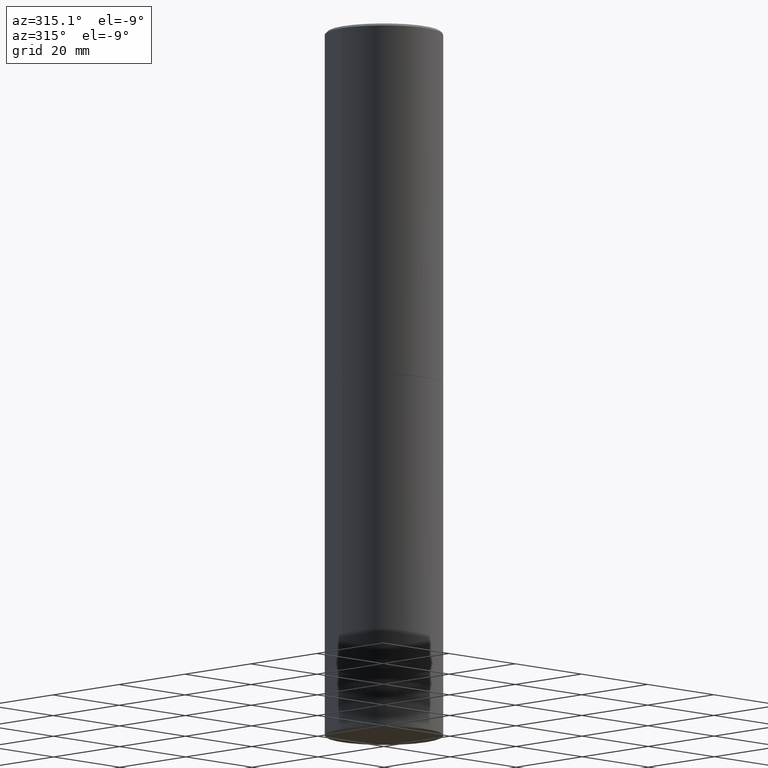
[diagram: clean part render]
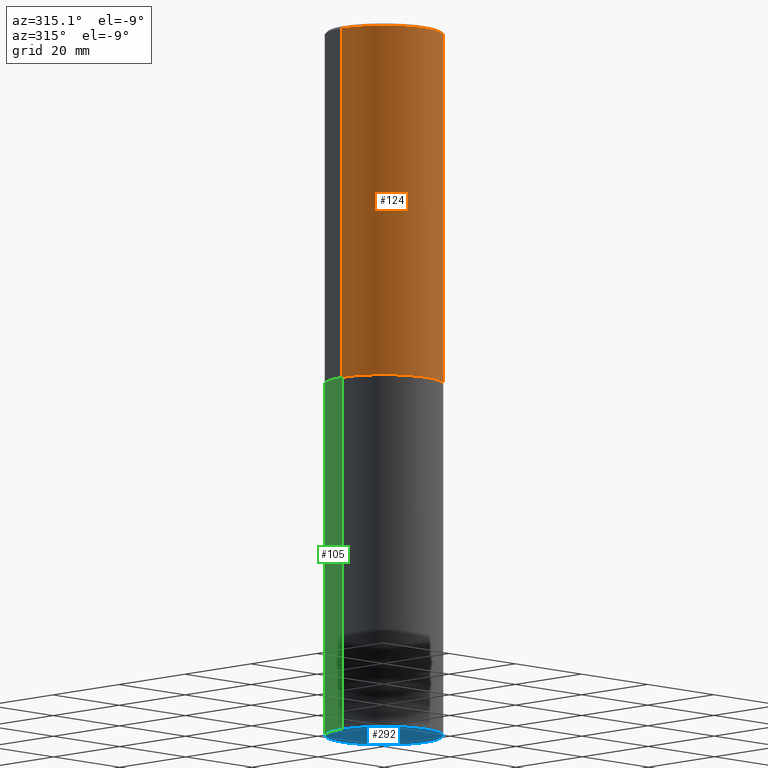
[diagram: same view with three faces highlighted in distinct colors, each labeled with its STEP entity id]
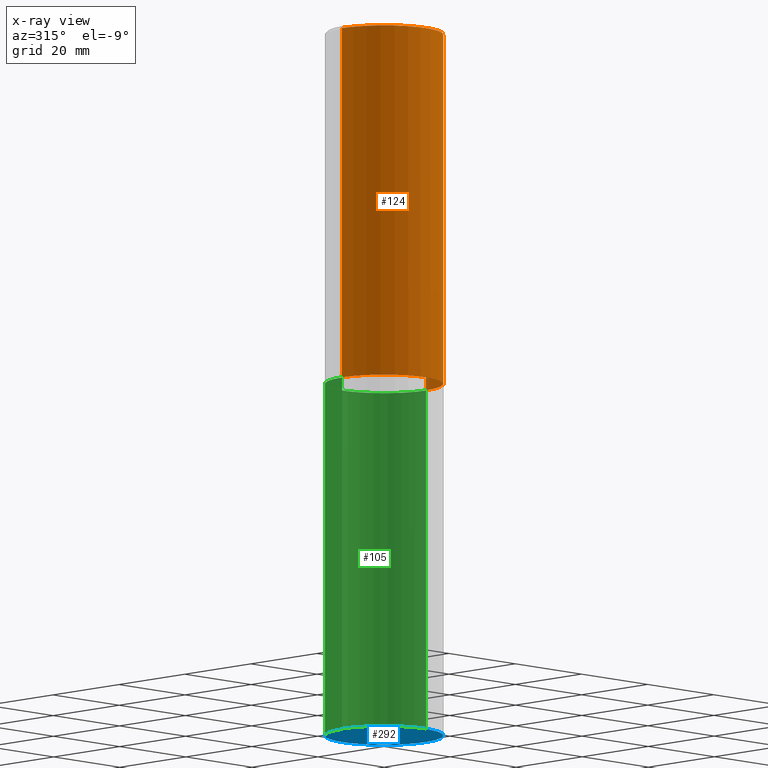
[diagram: x-ray of the same camera — body ghosted, the three highlighted faces saturated]
A machine part, auxiliary view with three faces highlighted in distinct colors.
The next image is the same camera in x-ray (body ghosted, the three faces saturated) — at least one of them is partly hidden behind the body in this view.
Their STEP definitions:

[orange] entity #124 — the highlighted cylindrical surface (partial cylindrical patch) has radius 12.7 mm, axis along (-0, 0, 1).
#7 = VECTOR ( 'NONE', #289, 39.37007874015748143 ) ;
#9 = ORIENTED_EDGE ( 'NONE', *, *, #233, .F. ) ;
#15 = DIRECTION ( 'NONE',  ( 1.000000000000000000, -6.982962677686266711E-15, 0.000000000000000000 ) ) ;
#16 = CARTESIAN_POINT ( 'NONE',  ( -0.5000000000000000000, -1.717677402183225026E-15, -2.999000000000000554 ) ) ;
#23 = CIRCLE ( 'NONE', #149, 0.4999999999999996114 ) ;
#25 = CARTESIAN_POINT ( 'NONE',  ( -0.4999999999999997780, 3.552713678800499352E-15, -2.459467545127452050E-29 ) ) ;
#45 = CARTESIAN_POINT ( 'NONE',  ( -0.4999999999999996114, 3.421651712066267296E-15, -0.02000000000000010797 ) ) ;
#51 = DIRECTION ( 'NONE',  ( -2.445468806185136877E-29, 3.491481338843145188E-15, 1.000000000000000000 ) ) ;
#56 = ORIENTED_EDGE ( 'NONE', *, *, #280, .T. ) ;
#71 = CARTESIAN_POINT ( 'NONE',  ( 4.890937612370299433E-31, -6.982962677686328587E-17, -0.02000000000000010797 ) ) ;
#79 = VECTOR ( 'NONE', #51, 39.37007874015748143 ) ;
#86 = AXIS2_PLACEMENT_3D ( 'NONE', #286, #168, #223 ) ;
#89 = VERTEX_POINT ( 'NONE', #247 ) ;
#102 = LINE ( 'NONE', #25, #79 ) ;
#104 = LINE ( 'NONE', #339, #7 ) ;
#109 = VERTEX_POINT ( 'NONE', #45 ) ;
#124 = ADVANCED_FACE ( 'NONE', ( #360 ), #159, .T. ) ;
#134 = EDGE_CURVE ( 'NONE', #109, #89, #23, .T. ) ;
#146 = EDGE_LOOP ( 'NONE', ( #9, #170, #56, #270 ) ) ;
#149 = AXIS2_PLACEMENT_3D ( 'NONE', #71, #217, #15 ) ;
#156 = DIRECTION ( 'NONE',  ( -2.445468806185136597E-29, 3.491481338843145583E-15, 1.000000000000000000 ) ) ;
#159 = CYLINDRICAL_SURFACE ( 'NONE', #230, 0.4999999999999997780 ) ;
#168 = DIRECTION ( 'NONE',  ( -2.445468806185136597E-29, 3.491481338843145583E-15, 1.000000000000000000 ) ) ;
#170 = ORIENTED_EDGE ( 'NONE', *, *, #268, .T. ) ;
#186 = CARTESIAN_POINT ( 'NONE',  ( 0.000000000000000000, 0.000000000000000000, 0.000000000000000000 ) ) ;
#203 = VERTEX_POINT ( 'NONE', #16 ) ;
#212 = DIRECTION ( 'NONE',  ( 1.000000000000000000, -6.982962677686266711E-15, 4.876176775795935793E-29 ) ) ;
#217 = DIRECTION ( 'NONE',  ( -2.445468806185136597E-29, 3.491481338843145583E-15, 1.000000000000000000 ) ) ;
#223 = DIRECTION ( 'NONE',  ( 1.000000000000000000, -6.982962677686266711E-15, 0.000000000000000000 ) ) ;
#230 = AXIS2_PLACEMENT_3D ( 'NONE', #186, #156, #212 ) ;
#233 = EDGE_CURVE ( 'NONE', #203, #109, #102, .T. ) ;
#247 = CARTESIAN_POINT ( 'NONE',  ( 0.4999999999999996114, -3.500078625662626318E-15, -0.02000000000000010797 ) ) ;
#268 = EDGE_CURVE ( 'NONE', #203, #322, #325, .T. ) ;
#270 = ORIENTED_EDGE ( 'NONE', *, *, #134, .F. ) ;
#280 = EDGE_CURVE ( 'NONE', #322, #89, #104, .T. ) ;
#286 = CARTESIAN_POINT ( 'NONE',  ( 7.333960949749226429E-29, -1.047095253519059492E-14, -2.999000000000000554 ) ) ;
#287 = CARTESIAN_POINT ( 'NONE',  ( 0.5000000000000000000, -1.396243387403372828E-14, -2.999000000000000554 ) ) ;
#289 = DIRECTION ( 'NONE',  ( -2.445468806185136877E-29, 3.491481338843145188E-15, 1.000000000000000000 ) ) ;
#322 = VERTEX_POINT ( 'NONE', #287 ) ;
#325 = CIRCLE ( 'NONE', #86, 0.5000000000000000000 ) ;
#339 = CARTESIAN_POINT ( 'NONE',  ( 0.4999999999999997780, -3.491481338843131778E-15, 2.438088387897966775E-29 ) ) ;
#360 = FACE_OUTER_BOUND ( 'NONE', #146, .T. ) ;

[blue] entity #292 — the highlighted planar face has unit normal (0, -0, -1).
#43 = CARTESIAN_POINT ( 'NONE',  ( 1.467281283711081958E-28, -2.094888803305887271E-14, -6.000000000000000888 ) ) ;
#44 = CIRCLE ( 'NONE', #239, 0.5000000000000000000 ) ;
#74 = EDGE_CURVE ( 'NONE', #84, #327, #44, .T. ) ;
#84 = VERTEX_POINT ( 'NONE', #336 ) ;
#128 = DIRECTION ( 'NONE',  ( 1.000000000000000000, -6.982962677686262766E-15, 0.000000000000000000 ) ) ;
#158 = AXIS2_PLACEMENT_3D ( 'NONE', #363, #224, #161 ) ;
#161 = DIRECTION ( 'NONE',  ( -1.000000000000000000, 6.982962677686265922E-15, -4.876176775795935793E-29 ) ) ;
#162 = CIRCLE ( 'NONE', #214, 0.5000000000000000000 ) ;
#166 = DIRECTION ( 'NONE',  ( -2.445468806185136597E-29, 3.491481338843145583E-15, 1.000000000000000000 ) ) ;
#191 = DIRECTION ( 'NONE',  ( 1.000000000000000000, -6.982962677686262766E-15, 0.000000000000000000 ) ) ;
#210 = EDGE_CURVE ( 'NONE', #327, #84, #162, .T. ) ;
#214 = AXIS2_PLACEMENT_3D ( 'NONE', #314, #166, #191 ) ;
#224 = DIRECTION ( 'NONE',  ( 2.438088387897960049E-29, -3.491481338843145188E-15, -1.000000000000000000 ) ) ;
#237 = ORIENTED_EDGE ( 'NONE', *, *, #210, .F. ) ;
#239 = AXIS2_PLACEMENT_3D ( 'NONE', #43, #334, #128 ) ;
#255 = FACE_OUTER_BOUND ( 'NONE', #318, .T. ) ;
#281 = CARTESIAN_POINT ( 'NONE',  ( -0.5000000000000000000, -1.215895234599365439E-14, -6.000000000000000888 ) ) ;
#292 = ADVANCED_FACE ( 'NONE', ( #255 ), #310, .T. ) ;
#298 = ORIENTED_EDGE ( 'NONE', *, *, #74, .F. ) ;
#310 = PLANE ( 'NONE',  #158 ) ;
#314 = CARTESIAN_POINT ( 'NONE',  ( 1.467281283711081958E-28, -2.094888803305887271E-14, -6.000000000000000888 ) ) ;
#318 = EDGE_LOOP ( 'NONE', ( #298, #237 ) ) ;
#327 = VERTEX_POINT ( 'NONE', #281 ) ;
#334 = DIRECTION ( 'NONE',  ( -2.445468806185136597E-29, 3.491481338843145583E-15, 1.000000000000000000 ) ) ;
#336 = CARTESIAN_POINT ( 'NONE',  ( 0.5000000000000000000, -2.444036937190200606E-14, -6.000000000000000888 ) ) ;
#363 = CARTESIAN_POINT ( 'NONE',  ( 3.491481338843279295E-15, 0.4999999999999790168, -6.000000000000002665 ) ) ;

[green] entity #105 — the highlighted cylindrical surface (partial cylindrical patch) has radius 12.7 mm, axis along (-0, 0, 1).
#17 = LINE ( 'NONE', #125, #307 ) ;
#33 = EDGE_LOOP ( 'NONE', ( #111, #59, #315, #178 ) ) ;
#36 = EDGE_CURVE ( 'NONE', #327, #91, #197, .T. ) ;
#39 = EDGE_CURVE ( 'NONE', #84, #179, #17, .T. ) ;
#42 = FACE_OUTER_BOUND ( 'NONE', #33, .T. ) ;
#43 = CARTESIAN_POINT ( 'NONE',  ( 1.467281283711081958E-28, -2.094888803305887271E-14, -6.000000000000000888 ) ) ;
#44 = CIRCLE ( 'NONE', #239, 0.5000000000000000000 ) ;
#49 = DIRECTION ( 'NONE',  ( 1.000000000000000000, -6.982962677686266711E-15, 0.000000000000000000 ) ) ;
#54 = CARTESIAN_POINT ( 'NONE',  ( -0.5000000000000000000, 3.552713678800500929E-15, -2.459467545127452891E-29 ) ) ;
#59 = ORIENTED_EDGE ( 'NONE', *, *, #36, .T. ) ;
#68 = AXIS2_PLACEMENT_3D ( 'NONE', #221, #75, #49 ) ;
#70 = DIRECTION ( 'NONE',  ( -2.445468806185136597E-29, 3.491481338843145583E-15, 1.000000000000000000 ) ) ;
#74 = EDGE_CURVE ( 'NONE', #84, #327, #44, .T. ) ;
#75 = DIRECTION ( 'NONE',  ( -2.445468806185136597E-29, 3.491481338843145583E-15, 1.000000000000000000 ) ) ;
#84 = VERTEX_POINT ( 'NONE', #336 ) ;
#91 = VERTEX_POINT ( 'NONE', #272 ) ;
#99 = VECTOR ( 'NONE', #172, 39.37007874015748143 ) ;
#105 = ADVANCED_FACE ( 'NONE', ( #42 ), #359, .T. ) ;
#111 = ORIENTED_EDGE ( 'NONE', *, *, #74, .T. ) ;
#125 = CARTESIAN_POINT ( 'NONE',  ( 0.5000000000000000000, -3.491481338843133355E-15, 2.438088387897967896E-29 ) ) ;
#128 = DIRECTION ( 'NONE',  ( 1.000000000000000000, -6.982962677686262766E-15, 0.000000000000000000 ) ) ;
#172 = DIRECTION ( 'NONE',  ( -2.445468806185136877E-29, 3.491481338843145188E-15, 1.000000000000000000 ) ) ;
#178 = ORIENTED_EDGE ( 'NONE', *, *, #39, .F. ) ;
#179 = VERTEX_POINT ( 'NONE', #244 ) ;
#182 = AXIS2_PLACEMENT_3D ( 'NONE', #216, #70, #306 ) ;
#197 = LINE ( 'NONE', #54, #99 ) ;
#216 = CARTESIAN_POINT ( 'NONE',  ( 0.000000000000000000, 0.000000000000000000, 0.000000000000000000 ) ) ;
#221 = CARTESIAN_POINT ( 'NONE',  ( 7.336406418555409790E-29, -1.047444401652943635E-14, -3.000000000000000444 ) ) ;
#239 = AXIS2_PLACEMENT_3D ( 'NONE', #43, #334, #128 ) ;
#244 = CARTESIAN_POINT ( 'NONE',  ( 0.5000000000000000000, -1.396592535537257129E-14, -3.000000000000000444 ) ) ;
#245 = DIRECTION ( 'NONE',  ( -2.445468806185136877E-29, 3.491481338843145188E-15, 1.000000000000000000 ) ) ;
#250 = EDGE_CURVE ( 'NONE', #179, #91, #258, .T. ) ;
#258 = CIRCLE ( 'NONE', #68, 0.5000000000000000000 ) ;
#272 = CARTESIAN_POINT ( 'NONE',  ( -0.5000000000000000000, -1.215895234599365439E-14, -3.000000000000000444 ) ) ;
#281 = CARTESIAN_POINT ( 'NONE',  ( -0.5000000000000000000, -1.215895234599365439E-14, -6.000000000000000888 ) ) ;
#306 = DIRECTION ( 'NONE',  ( 1.000000000000000000, -6.982962677686266711E-15, 4.876176775795935793E-29 ) ) ;
#307 = VECTOR ( 'NONE', #245, 39.37007874015748143 ) ;
#315 = ORIENTED_EDGE ( 'NONE', *, *, #250, .F. ) ;
#327 = VERTEX_POINT ( 'NONE', #281 ) ;
#334 = DIRECTION ( 'NONE',  ( -2.445468806185136597E-29, 3.491481338843145583E-15, 1.000000000000000000 ) ) ;
#336 = CARTESIAN_POINT ( 'NONE',  ( 0.5000000000000000000, -2.444036937190200606E-14, -6.000000000000000888 ) ) ;
#359 = CYLINDRICAL_SURFACE ( 'NONE', #182, 0.5000000000000000000 ) ;